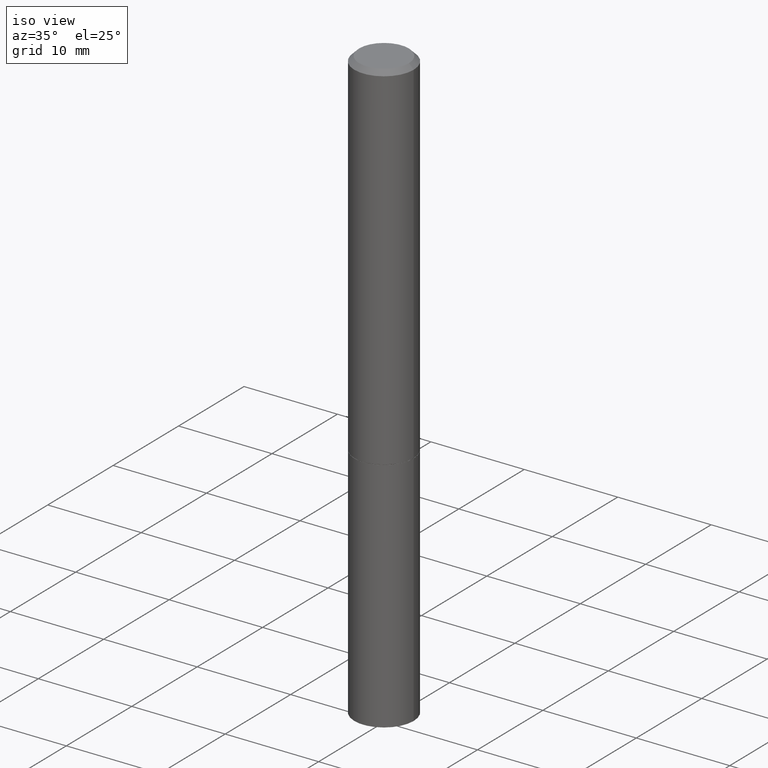
[diagram: clean part render]
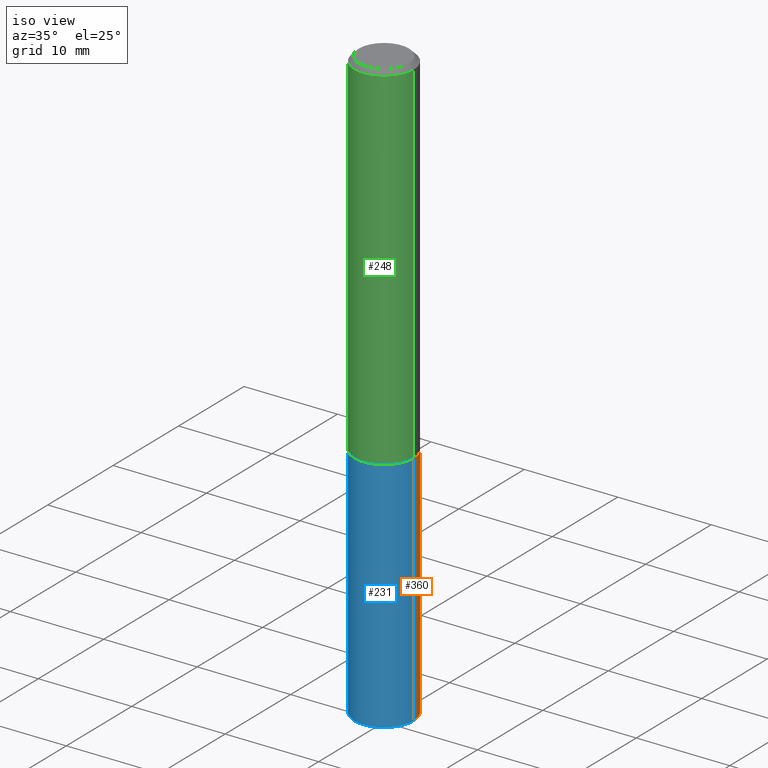
[diagram: same view with three faces highlighted in distinct colors, each labeled with its STEP entity id]
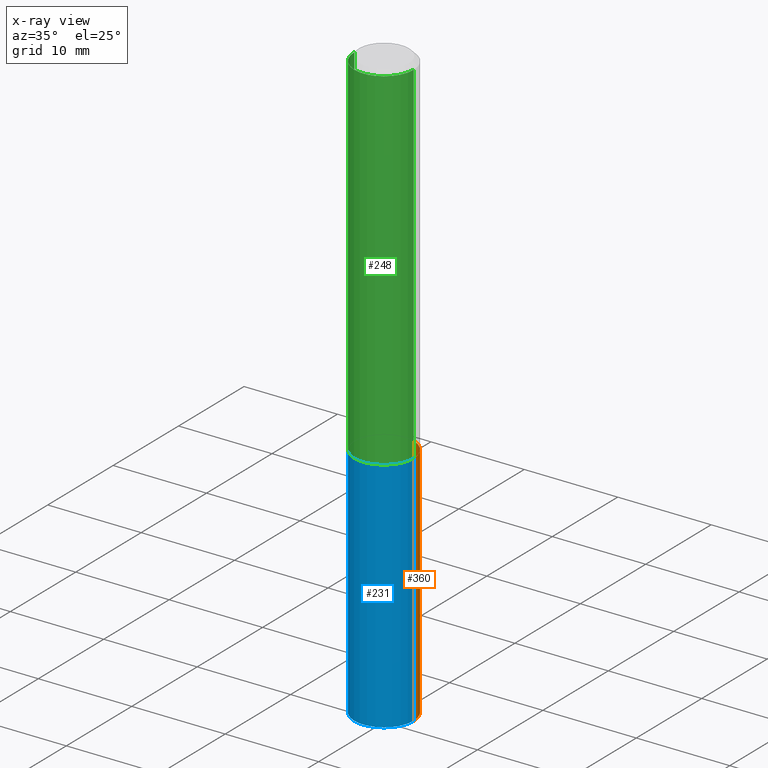
[diagram: x-ray of the same camera — body ghosted, the three highlighted faces saturated]
A machine part, iso view with three faces highlighted in distinct colors.
The next image is the same camera in x-ray (body ghosted, the three faces saturated) — at least one of them is partly hidden behind the body in this view.
Their STEP definitions:

[orange] entity #360 — the highlighted cylindrical surface (edge-blend (fillet) strip) has radius 3.175 mm, axis along (-0, 0, 1).
#6 = CARTESIAN_POINT ( 'NONE',  ( 0.1250000000000000000, -8.728703347107833388E-16, 6.095220969744919741E-30 ) ) ;
#9 = DIRECTION ( 'NONE',  ( -2.445468806185136597E-29, 3.491481338843145583E-15, 1.000000000000000000 ) ) ;
#21 = DIRECTION ( 'NONE',  ( -2.445468806185136597E-29, 3.491481338843145583E-15, 1.000000000000000000 ) ) ;
#24 = CARTESIAN_POINT ( 'NONE',  ( -0.1250000000000000000, -6.094784257986165933E-15, -2.500000000000000000 ) ) ;
#62 = VECTOR ( 'NONE', #177, 39.37007874015748143 ) ;
#72 = LINE ( 'NONE', #327, #62 ) ;
#80 = VERTEX_POINT ( 'NONE', #354 ) ;
#81 = AXIS2_PLACEMENT_3D ( 'NONE', #121, #235, #97 ) ;
#86 = LINE ( 'NONE', #6, #141 ) ;
#91 = EDGE_CURVE ( 'NONE', #315, #238, #72, .T. ) ;
#97 = DIRECTION ( 'NONE',  ( 1.000000000000000000, -6.982962677686262766E-15, 0.000000000000000000 ) ) ;
#109 = ORIENTED_EDGE ( 'NONE', *, *, #237, .F. ) ;
#120 = AXIS2_PLACEMENT_3D ( 'NONE', #206, #9, #316 ) ;
#121 = CARTESIAN_POINT ( 'NONE',  ( 3.668203209277704895E-29, -5.237222008264718177E-15, -1.500000000000000222 ) ) ;
#125 = CARTESIAN_POINT ( 'NONE',  ( 0.1250000000000000000, -9.601573681818648281E-15, -2.500000000000000000 ) ) ;
#129 = EDGE_LOOP ( 'NONE', ( #286, #221, #284, #109 ) ) ;
#141 = VECTOR ( 'NONE', #198, 39.37007874015748143 ) ;
#159 = DIRECTION ( 'NONE',  ( 1.000000000000000000, -6.982962677686270655E-15, 0.000000000000000000 ) ) ;
#161 = EDGE_CURVE ( 'NONE', #80, #238, #262, .T. ) ;
#167 = FACE_OUTER_BOUND ( 'NONE', #129, .T. ) ;
#177 = DIRECTION ( 'NONE',  ( -2.445468806185136877E-29, 3.491481338843145188E-15, 1.000000000000000000 ) ) ;
#198 = DIRECTION ( 'NONE',  ( -2.445468806185136877E-29, 3.491481338843145188E-15, 1.000000000000000000 ) ) ;
#206 = CARTESIAN_POINT ( 'NONE',  ( 0.000000000000000000, 0.000000000000000000, 0.000000000000000000 ) ) ;
#221 = ORIENTED_EDGE ( 'NONE', *, *, #91, .T. ) ;
#235 = DIRECTION ( 'NONE',  ( -2.445468806185136597E-29, 3.491481338843145583E-15, 1.000000000000000000 ) ) ;
#237 = EDGE_CURVE ( 'NONE', #308, #80, #86, .T. ) ;
#238 = VERTEX_POINT ( 'NONE', #314 ) ;
#262 = CIRCLE ( 'NONE', #81, 0.1250000000000000000 ) ;
#265 = CARTESIAN_POINT ( 'NONE',  ( 6.113672015462842613E-29, -8.728703347107864943E-15, -2.500000000000000000 ) ) ;
#284 = ORIENTED_EDGE ( 'NONE', *, *, #161, .F. ) ;
#286 = ORIENTED_EDGE ( 'NONE', *, *, #287, .T. ) ;
#287 = EDGE_CURVE ( 'NONE', #308, #315, #364, .T. ) ;
#288 = AXIS2_PLACEMENT_3D ( 'NONE', #265, #21, #159 ) ;
#308 = VERTEX_POINT ( 'NONE', #125 ) ;
#314 = CARTESIAN_POINT ( 'NONE',  ( -0.1250000000000000000, -6.094784257986165933E-15, -1.500000000000000222 ) ) ;
#315 = VERTEX_POINT ( 'NONE', #24 ) ;
#316 = DIRECTION ( 'NONE',  ( 1.000000000000000000, -6.982962677686266711E-15, 4.876176775795935793E-29 ) ) ;
#327 = CARTESIAN_POINT ( 'NONE',  ( -0.1250000000000000000, 8.881784197001252323E-16, -6.148668862818632227E-30 ) ) ;
#352 = CYLINDRICAL_SURFACE ( 'NONE', #120, 0.1250000000000000000 ) ;
#354 = CARTESIAN_POINT ( 'NONE',  ( 0.1250000000000000000, -6.110092342975501516E-15, -1.500000000000000222 ) ) ;
#360 = ADVANCED_FACE ( 'NONE', ( #167 ), #352, .T. ) ;
#364 = CIRCLE ( 'NONE', #288, 0.1250000000000000000 ) ;

[blue] entity #231 — the highlighted cylindrical surface (edge-blend (fillet) strip) has radius 3.175 mm, axis along (-0, 0, 1).
#6 = CARTESIAN_POINT ( 'NONE',  ( 0.1250000000000000000, -8.728703347107833388E-16, 6.095220969744919741E-30 ) ) ;
#24 = CARTESIAN_POINT ( 'NONE',  ( -0.1250000000000000000, -6.094784257986165933E-15, -2.500000000000000000 ) ) ;
#29 = CIRCLE ( 'NONE', #190, 0.1250000000000000000 ) ;
#50 = CYLINDRICAL_SURFACE ( 'NONE', #242, 0.1250000000000000000 ) ;
#62 = VECTOR ( 'NONE', #177, 39.37007874015748143 ) ;
#72 = LINE ( 'NONE', #327, #62 ) ;
#80 = VERTEX_POINT ( 'NONE', #354 ) ;
#86 = LINE ( 'NONE', #6, #141 ) ;
#91 = EDGE_CURVE ( 'NONE', #315, #238, #72, .T. ) ;
#103 = CARTESIAN_POINT ( 'NONE',  ( 3.668203209277704895E-29, -5.237222008264718177E-15, -1.500000000000000222 ) ) ;
#114 = CARTESIAN_POINT ( 'NONE',  ( 0.000000000000000000, 0.000000000000000000, 0.000000000000000000 ) ) ;
#125 = CARTESIAN_POINT ( 'NONE',  ( 0.1250000000000000000, -9.601573681818648281E-15, -2.500000000000000000 ) ) ;
#141 = VECTOR ( 'NONE', #198, 39.37007874015748143 ) ;
#150 = DIRECTION ( 'NONE',  ( -2.445468806185136597E-29, 3.491481338843145583E-15, 1.000000000000000000 ) ) ;
#153 = DIRECTION ( 'NONE',  ( -2.445468806185136597E-29, 3.491481338843145583E-15, 1.000000000000000000 ) ) ;
#155 = FACE_OUTER_BOUND ( 'NONE', #204, .T. ) ;
#163 = DIRECTION ( 'NONE',  ( -2.445468806185136597E-29, 3.491481338843145583E-15, 1.000000000000000000 ) ) ;
#164 = DIRECTION ( 'NONE',  ( 1.000000000000000000, -6.982962677686266711E-15, 4.876176775795935793E-29 ) ) ;
#177 = DIRECTION ( 'NONE',  ( -2.445468806185136877E-29, 3.491481338843145188E-15, 1.000000000000000000 ) ) ;
#190 = AXIS2_PLACEMENT_3D ( 'NONE', #269, #153, #298 ) ;
#198 = DIRECTION ( 'NONE',  ( -2.445468806185136877E-29, 3.491481338843145188E-15, 1.000000000000000000 ) ) ;
#202 = ORIENTED_EDGE ( 'NONE', *, *, #91, .F. ) ;
#204 = EDGE_LOOP ( 'NONE', ( #202, #264, #339, #338 ) ) ;
#215 = EDGE_CURVE ( 'NONE', #238, #80, #343, .T. ) ;
#231 = ADVANCED_FACE ( 'NONE', ( #155 ), #50, .T. ) ;
#237 = EDGE_CURVE ( 'NONE', #308, #80, #86, .T. ) ;
#238 = VERTEX_POINT ( 'NONE', #314 ) ;
#242 = AXIS2_PLACEMENT_3D ( 'NONE', #114, #163, #164 ) ;
#264 = ORIENTED_EDGE ( 'NONE', *, *, #300, .T. ) ;
#269 = CARTESIAN_POINT ( 'NONE',  ( 6.113672015462842613E-29, -8.728703347107864943E-15, -2.500000000000000000 ) ) ;
#298 = DIRECTION ( 'NONE',  ( 1.000000000000000000, -6.982962677686270655E-15, 0.000000000000000000 ) ) ;
#300 = EDGE_CURVE ( 'NONE', #315, #308, #29, .T. ) ;
#308 = VERTEX_POINT ( 'NONE', #125 ) ;
#314 = CARTESIAN_POINT ( 'NONE',  ( -0.1250000000000000000, -6.094784257986165933E-15, -1.500000000000000222 ) ) ;
#315 = VERTEX_POINT ( 'NONE', #24 ) ;
#327 = CARTESIAN_POINT ( 'NONE',  ( -0.1250000000000000000, 8.881784197001252323E-16, -6.148668862818632227E-30 ) ) ;
#338 = ORIENTED_EDGE ( 'NONE', *, *, #215, .F. ) ;
#339 = ORIENTED_EDGE ( 'NONE', *, *, #237, .T. ) ;
#343 = CIRCLE ( 'NONE', #361, 0.1250000000000000000 ) ;
#346 = DIRECTION ( 'NONE',  ( 1.000000000000000000, -6.982962677686262766E-15, 0.000000000000000000 ) ) ;
#354 = CARTESIAN_POINT ( 'NONE',  ( 0.1250000000000000000, -6.110092342975501516E-15, -1.500000000000000222 ) ) ;
#361 = AXIS2_PLACEMENT_3D ( 'NONE', #103, #150, #346 ) ;

[green] entity #248 — the highlighted cylindrical surface (edge-blend (fillet) strip) has radius 3.175 mm, axis along (-0, 0, 1).
#2 = VERTEX_POINT ( 'NONE', #67 ) ;
#10 = AXIS2_PLACEMENT_3D ( 'NONE', #357, #179, #331 ) ;
#13 = CARTESIAN_POINT ( 'NONE',  ( 0.1250000000000000000, -6.106600861636658508E-15, -1.499000000000000110 ) ) ;
#20 = EDGE_CURVE ( 'NONE', #239, #49, #181, .T. ) ;
#34 = CARTESIAN_POINT ( 'NONE',  ( -0.1250000000000000278, -1.763601657151242227E-15, -1.499000000000000110 ) ) ;
#36 = CYLINDRICAL_SURFACE ( 'NONE', #127, 0.1249999999999999029 ) ;
#44 = CARTESIAN_POINT ( 'NONE',  ( -0.1249999999999997780, 8.030407079339186601E-16, -0.02000000000000004552 ) ) ;
#49 = VERTEX_POINT ( 'NONE', #13 ) ;
#51 = DIRECTION ( 'NONE',  ( -2.445468806185136597E-29, 3.491481338843145583E-15, 1.000000000000000000 ) ) ;
#67 = CARTESIAN_POINT ( 'NONE',  ( 0.1249999999999997780, -9.273918764983029686E-16, -0.02000000000000004552 ) ) ;
#101 = ORIENTED_EDGE ( 'NONE', *, *, #319, .T. ) ;
#127 = AXIS2_PLACEMENT_3D ( 'NONE', #138, #51, #152 ) ;
#128 = DIRECTION ( 'NONE',  ( -2.445468806185136877E-29, 3.491481338843145188E-15, 1.000000000000000000 ) ) ;
#138 = CARTESIAN_POINT ( 'NONE',  ( 0.000000000000000000, 0.000000000000000000, 0.000000000000000000 ) ) ;
#143 = DIRECTION ( 'NONE',  ( -2.445468806185136597E-29, 3.491481338843145583E-15, 1.000000000000000000 ) ) ;
#152 = DIRECTION ( 'NONE',  ( 1.000000000000000000, -6.982962677686266711E-15, 4.876176775795935793E-29 ) ) ;
#176 = VECTOR ( 'NONE', #326, 39.37007874015748143 ) ;
#179 = DIRECTION ( 'NONE',  ( -2.445468806185136597E-29, 3.491481338843145583E-15, 1.000000000000000000 ) ) ;
#181 = CIRCLE ( 'NONE', #10, 0.1250000000000000000 ) ;
#193 = LINE ( 'NONE', #366, #267 ) ;
#196 = EDGE_CURVE ( 'NONE', #239, #224, #317, .T. ) ;
#212 = ORIENTED_EDGE ( 'NONE', *, *, #196, .F. ) ;
#218 = ORIENTED_EDGE ( 'NONE', *, *, #362, .F. ) ;
#224 = VERTEX_POINT ( 'NONE', #44 ) ;
#236 = EDGE_LOOP ( 'NONE', ( #212, #355, #101, #218 ) ) ;
#239 = VERTEX_POINT ( 'NONE', #34 ) ;
#248 = ADVANCED_FACE ( 'NONE', ( #253 ), #36, .T. ) ;
#253 = FACE_OUTER_BOUND ( 'NONE', #236, .T. ) ;
#267 = VECTOR ( 'NONE', #128, 39.37007874015748143 ) ;
#271 = CIRCLE ( 'NONE', #278, 0.1249999999999997780 ) ;
#278 = AXIS2_PLACEMENT_3D ( 'NONE', #282, #143, #325 ) ;
#282 = CARTESIAN_POINT ( 'NONE',  ( 4.890937612370284544E-31, -6.982962677686307633E-17, -0.02000000000000004552 ) ) ;
#317 = LINE ( 'NONE', #321, #176 ) ;
#319 = EDGE_CURVE ( 'NONE', #49, #2, #193, .T. ) ;
#321 = CARTESIAN_POINT ( 'NONE',  ( -0.1249999999999999029, 8.881784197001245421E-16, -6.148668862818627323E-30 ) ) ;
#325 = DIRECTION ( 'NONE',  ( 1.000000000000000000, -6.982962677686266711E-15, 0.000000000000000000 ) ) ;
#326 = DIRECTION ( 'NONE',  ( -2.445468806185136877E-29, 3.491481338843145188E-15, 1.000000000000000000 ) ) ;
#331 = DIRECTION ( 'NONE',  ( 1.000000000000000000, -6.982962677686262766E-15, 0.000000000000000000 ) ) ;
#355 = ORIENTED_EDGE ( 'NONE', *, *, #20, .T. ) ;
#357 = CARTESIAN_POINT ( 'NONE',  ( 3.665757740471519853E-29, -5.233730526925875958E-15, -1.499000000000000110 ) ) ;
#362 = EDGE_CURVE ( 'NONE', #224, #2, #271, .T. ) ;
#366 = CARTESIAN_POINT ( 'NONE',  ( 0.1249999999999999029, -8.728703347107826486E-16, 6.095220969744914837E-30 ) ) ;